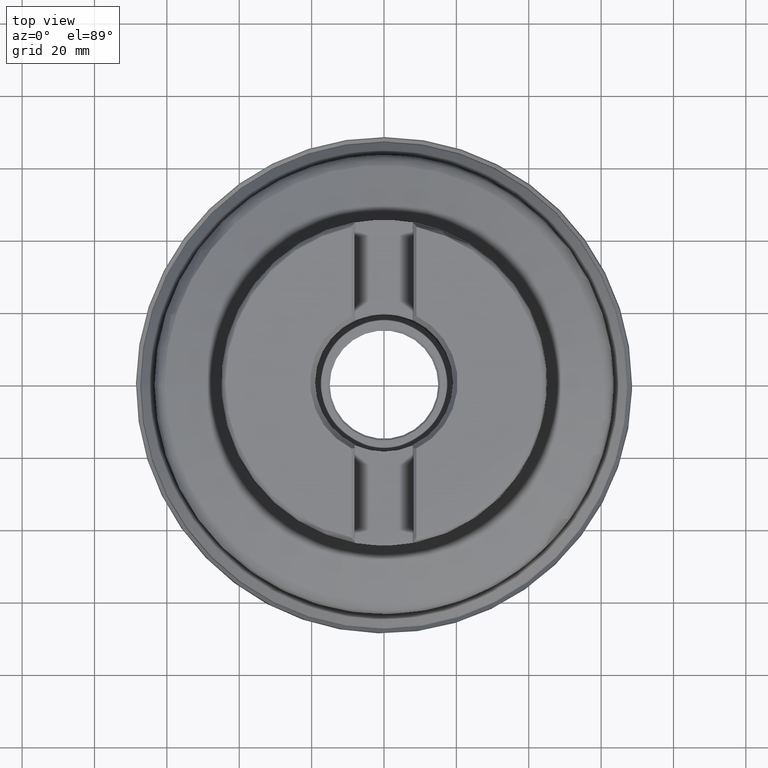
[diagram: clean part render]
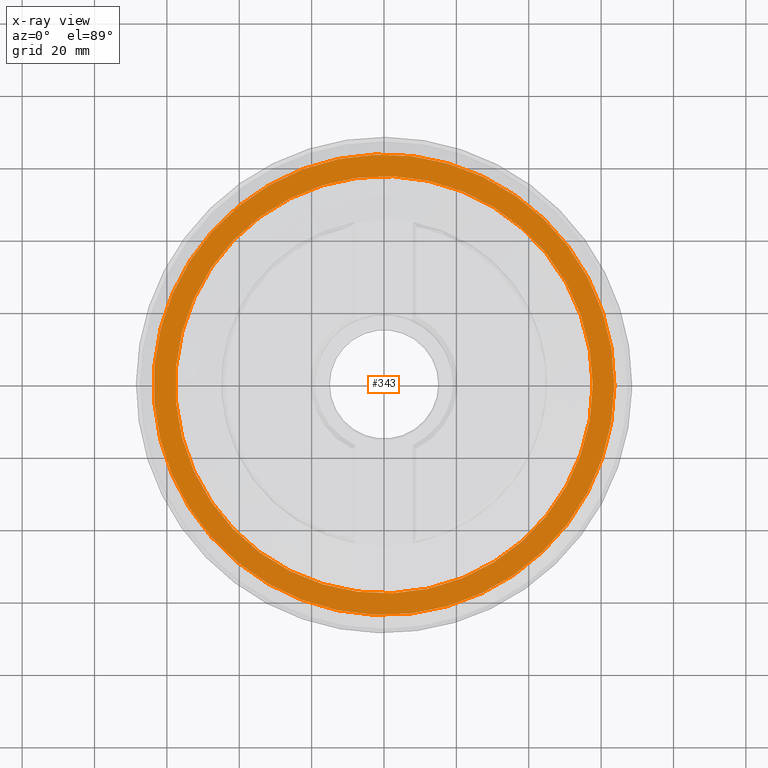
[diagram: x-ray — body ghosted, one internal face saturated and labeled with its STEP entity id]
A machine part, top view, then the same camera in x-ray: the body is ghosted and one INTERNAL B-rep face — a face not visible from any outside direction — is saturated and labeled: STEP entity #343.
In plain terms, the highlighted face is a SurfaceOfRevolution surface.
Its self-contained STEP definition (entity closure, byte-faithful):
#125=SURFACE_OF_REVOLUTION('',#209,#145);
#145=AXIS1_PLACEMENT('',#2205,#1475);
#209=LINE('',#2204,#241);
#241=VECTOR('',#1474,5.97815706144227);
#343=ADVANCED_FACE('',(#451,#452),#125,.F.);
#451=FACE_BOUND('',#571,.T.);
#452=FACE_BOUND('',#572,.T.);
#571=EDGE_LOOP('',(#789));
#572=EDGE_LOOP('',(#790));
#789=ORIENTED_EDGE('',*,*,#992,.T.);
#790=ORIENTED_EDGE('',*,*,#993,.F.);
#883=VERTEX_POINT('',#2196);
#884=VERTEX_POINT('',#2203);
#992=EDGE_CURVE('',#883,#883,#1048,.T.);
#993=EDGE_CURVE('',#884,#884,#1049,.T.);
#1048=CIRCLE('',#1209,57.6703623393265);
#1049=CIRCLE('',#1210,63.6370996490201);
#1209=AXIS2_PLACEMENT_3D('',#2195,#1469,#1470);
#1210=AXIS2_PLACEMENT_3D('',#2202,#1472,#1473);
#1469=DIRECTION('',(1.17145536458252E-15,0.,1.));
#1470=DIRECTION('',(1.,0.,-1.14303932580231E-15));
#1472=DIRECTION('',(1.17145536458252E-15,0.,1.));
#1473=DIRECTION('',(1.,0.,-1.14490425228152E-15));
#1474=DIRECTION('',(7.64633601271711E-17,0.999994403756936,0.00334551263783191));
#1475=DIRECTION('',(1.17145536458252E-15,0.,1.));
#2195=CARTESIAN_POINT('',(1.85058605021965E-14,0.,15.7973244749206));
#2196=CARTESIAN_POINT('',(57.6703623393265,0.,15.7973244749205));
#2202=CARTESIAN_POINT('',(1.84824313944889E-14,0.,15.7773244745655));
#2203=CARTESIAN_POINT('',(63.6370996490201,0.,15.7773244745655));
#2204=CARTESIAN_POINT('',(3.73722269904489,-63.527266595905,15.7773244749206));
#2205=CARTESIAN_POINT('',(0.,0.,0.));